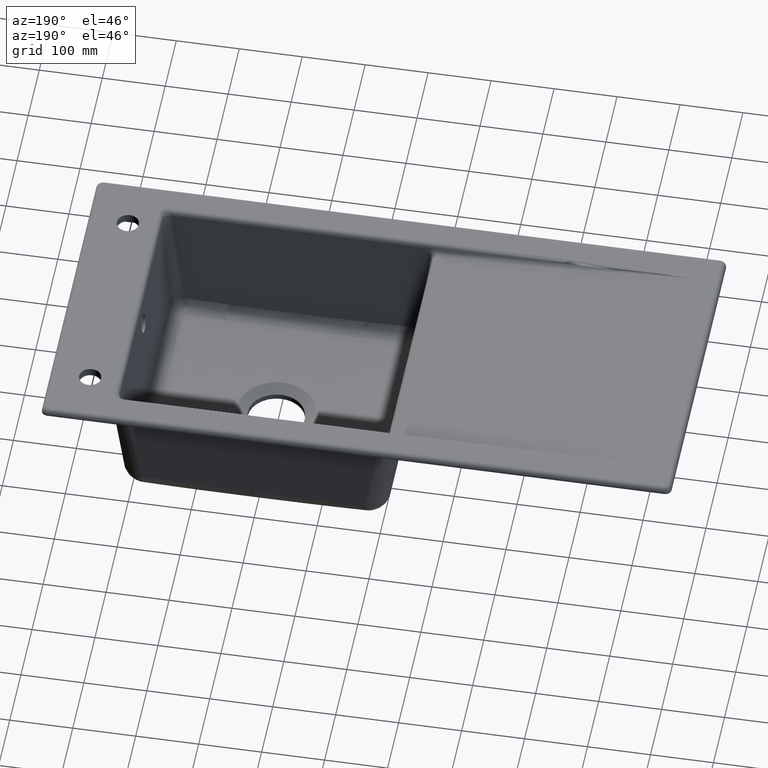
[diagram: clean part render]
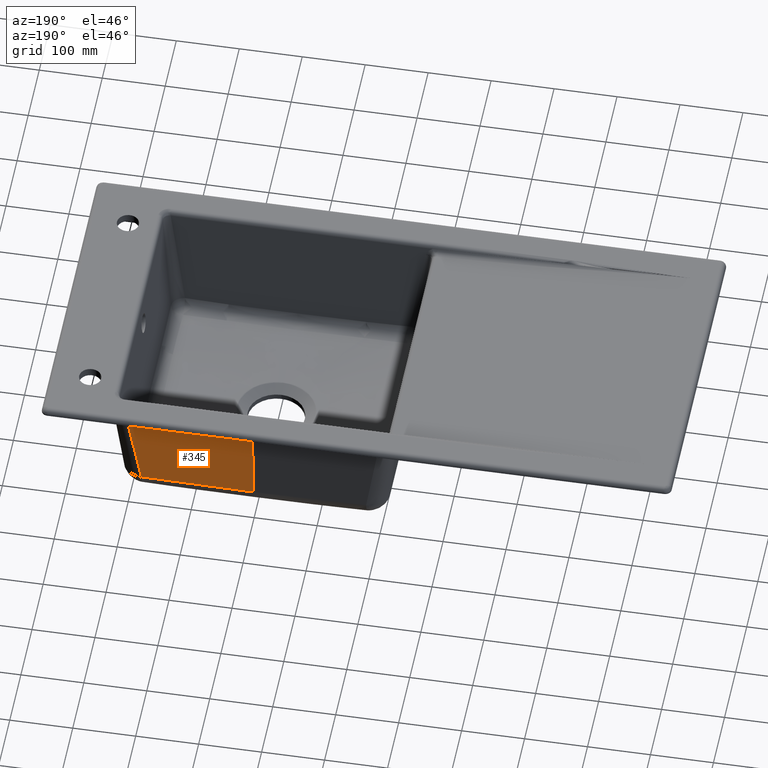
[diagram: same view with one face highlighted and labeled with its STEP entity id]
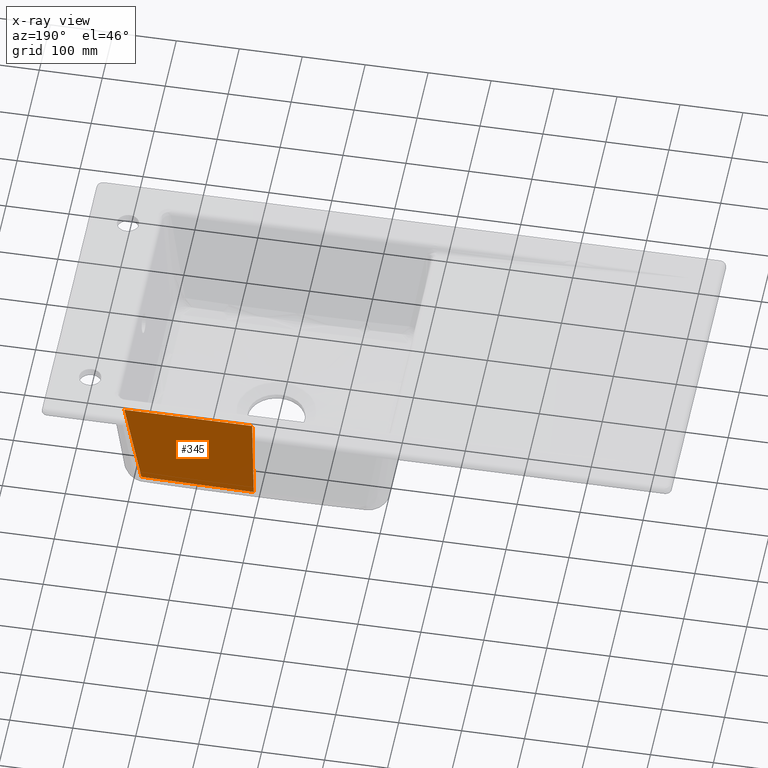
[diagram: x-ray of the same camera — body ghosted, the highlighted face saturated]
A machine part, auxiliary view. The second image highlights one B-rep face of the part: STEP entity #345.
The next image is the same camera in x-ray: the body ghosted, the highlighted face saturated — about 0% of this face is hidden behind the body in this view.
In plain terms, the highlighted planar face has unit normal (0, 0.9962, -0.0872).
Its self-contained STEP definition (entity closure, byte-faithful):
#345=ADVANCED_FACE('',(#586),#528,.T.);
#528=PLANE('',#3354);
#586=FACE_OUTER_BOUND('',#785,.T.);
#785=EDGE_LOOP('',(#1500,#1501,#1502,#1503,#1504));
#1070=B_SPLINE_CURVE_WITH_KNOTS('',3,(#6581,#6582,#6583,#6584),
 .UNSPECIFIED.,.F.,.F.,(4,4),(0.,1.),.UNSPECIFIED.);
#1071=B_SPLINE_CURVE_WITH_KNOTS('',3,(#6586,#6587,#6588,#6589),
 .UNSPECIFIED.,.F.,.F.,(4,4),(0.,1.),.UNSPECIFIED.);
#1072=B_SPLINE_CURVE_WITH_KNOTS('',3,(#6630,#6631,#6632,#6633,#6634,#6635,
#6636,#6637,#6638,#6639,#6640,#6641,#6642,#6643),.UNSPECIFIED.,.F.,.F.,
(4,2,2,2,2,2,4),(0.,0.199832710397667,0.39966607319763,0.599500413559746,
0.699416776390987,0.899252785760771,1.),.UNSPECIFIED.);
#1500=ORIENTED_EDGE('',*,*,#2605,.F.);
#1501=ORIENTED_EDGE('',*,*,#2752,.F.);
#1502=ORIENTED_EDGE('',*,*,#2751,.T.);
#1503=ORIENTED_EDGE('',*,*,#2753,.F.);
#1504=ORIENTED_EDGE('',*,*,#2754,.F.);
#2293=VERTEX_POINT('',#4199);
#2294=VERTEX_POINT('',#4201);
#2408=VERTEX_POINT('',#6580);
#2409=VERTEX_POINT('',#6585);
#2410=VERTEX_POINT('',#6644);
#2605=EDGE_CURVE('',#2293,#2294,#3081,.T.);
#2751=EDGE_CURVE('',#2409,#2408,#1070,.T.);
#2752=EDGE_CURVE('',#2409,#2293,#1071,.T.);
#2753=EDGE_CURVE('',#2410,#2408,#1072,.T.);
#2754=EDGE_CURVE('',#2294,#2410,#3122,.T.);
#3081=LINE('',#4200,#3200);
#3122=LINE('',#6645,#3241);
#3200=VECTOR('',#3520,1.);
#3241=VECTOR('',#3651,1.);
#3354=AXIS2_PLACEMENT_3D('',#6646,#3652,#3653);
#3520=DIRECTION('',(-1.,0.,0.));
#3651=DIRECTION('',(0.,-0.087155742747638,-0.996194698091747));
#3652=DIRECTION('',(0.,0.996194698091747,-0.087155742747638));
#3653=DIRECTION('',(0.,-0.087155742747638,-0.996194698091747));
#4199=CARTESIAN_POINT('',(203.050315325257,217.843247043021,-13.8330000003289));
#4200=CARTESIAN_POINT('',(-648.361818873103,217.843247043021,-13.8330000003289));
#4201=CARTESIAN_POINT('',(0.,217.843247043021,-13.8330000003289));
#6580=CARTESIAN_POINT('',(178.39251286592,203.783703599837,-174.534316908908));
#6581=CARTESIAN_POINT('',(202.947971702385,217.784892104478,-14.5));
#6582=CARTESIAN_POINT('',(194.762818756173,213.117829269607,-67.84477230286));
#6583=CARTESIAN_POINT('',(186.577665809961,208.450766434737,-121.18954460572));
#6584=CARTESIAN_POINT('',(178.392512863749,203.783703599866,-174.53431690858));
#6585=CARTESIAN_POINT('',(202.947971703222,217.784892104467,-14.5000000001274));
#6586=CARTESIAN_POINT('',(202.947971702875,217.784892104472,-14.5000000000746));
#6587=CARTESIAN_POINT('',(202.982086242305,217.804343750655,-14.2776666668263));
#6588=CARTESIAN_POINT('',(203.016200781735,217.823795396838,-14.0553333335779));
#6589=CARTESIAN_POINT('',(203.050315321165,217.843247043021,-13.8330000003296));
#6630=CARTESIAN_POINT('',(5.3927869887069E-25,203.576127964998,-176.906917271901));
#6631=CARTESIAN_POINT('',(11.8844107902665,203.576127965018,-176.906917271672));
#6632=CARTESIAN_POINT('',(23.7688425497666,203.577094148879,-176.895873739604));
#6633=CARTESIAN_POINT('',(47.537586239784,203.583111726034,-176.827092517992));
#6634=CARTESIAN_POINT('',(59.4219530502639,203.5881685471,-176.769292788718));
#6635=CARTESIAN_POINT('',(83.1901116179566,203.604537453113,-176.582195336852));
#6636=CARTESIAN_POINT('',(95.0740155405345,203.615857874964,-176.452802323008));
#6637=CARTESIAN_POINT('',(112.898717630177,203.639003953783,-176.188241431503));
#6638=CARTESIAN_POINT('',(118.840109929948,203.647744490631,-176.088336638167));
#6639=CARTESIAN_POINT('',(136.663611702662,203.677345123888,-175.749999851853));
#6640=CARTESIAN_POINT('',(148.545131825145,203.701608707706,-175.472665819757));
#6641=CARTESIAN_POINT('',(166.414061128647,203.74576357074,-174.967973425851));
#6642=CARTESIAN_POINT('',(172.403736697748,203.760257414859,-174.802308029505));
#6643=CARTESIAN_POINT('',(178.38999688785,203.78226902435,-174.550714181755));
#6644=CARTESIAN_POINT('',(2.85312496752905E-8,203.57612796503,-176.906917271575));
#6645=CARTESIAN_POINT('',(0.,203.657297188774,-175.979148798765));
#6646=CARTESIAN_POINT('',(-240.,203.657297188774,-175.979148798765));